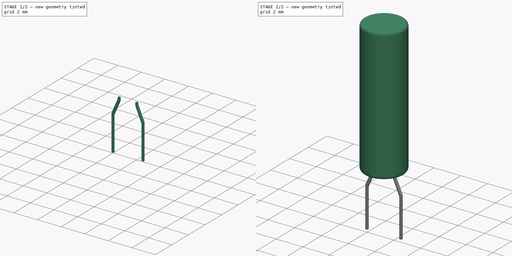
[diagram: build sequence overview — one tinted view per stage of 2, left to right]
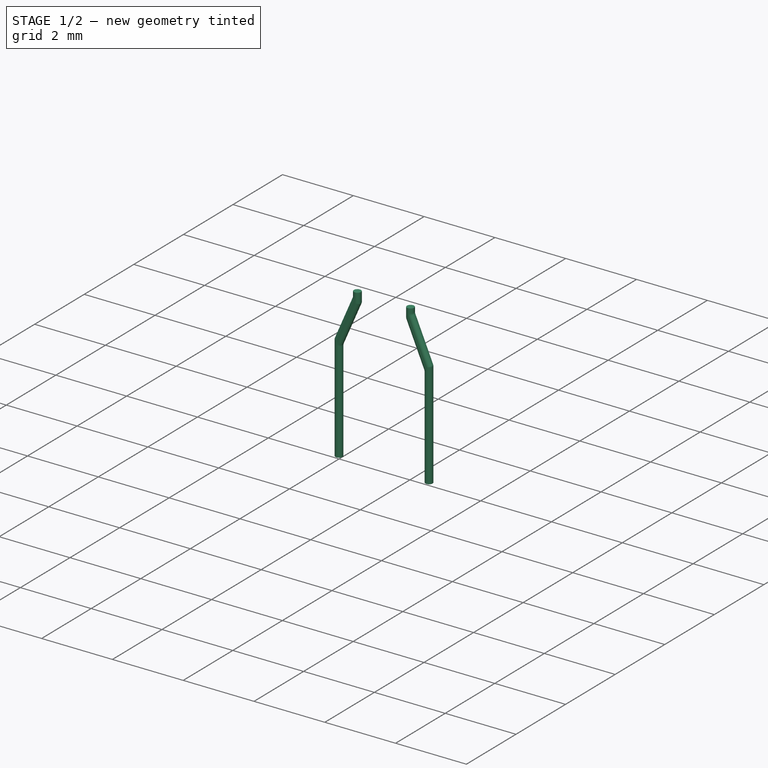
[diagram: stage 1 of 2 — iso view after this stage's code; geometry added in this stage tinted green]
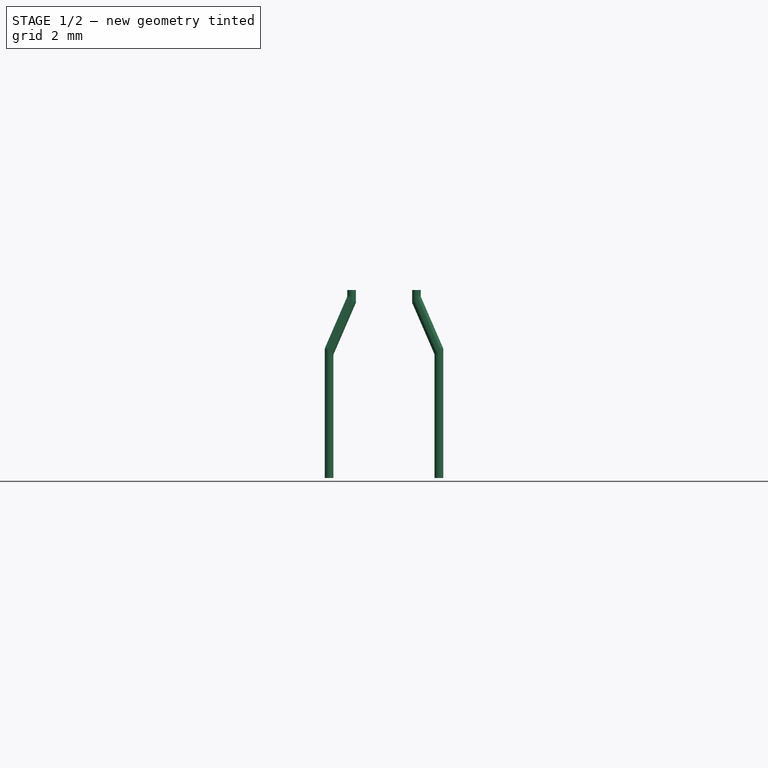
[diagram: stage 1 of 2 — front view after this stage's code; geometry added in this stage tinted green]
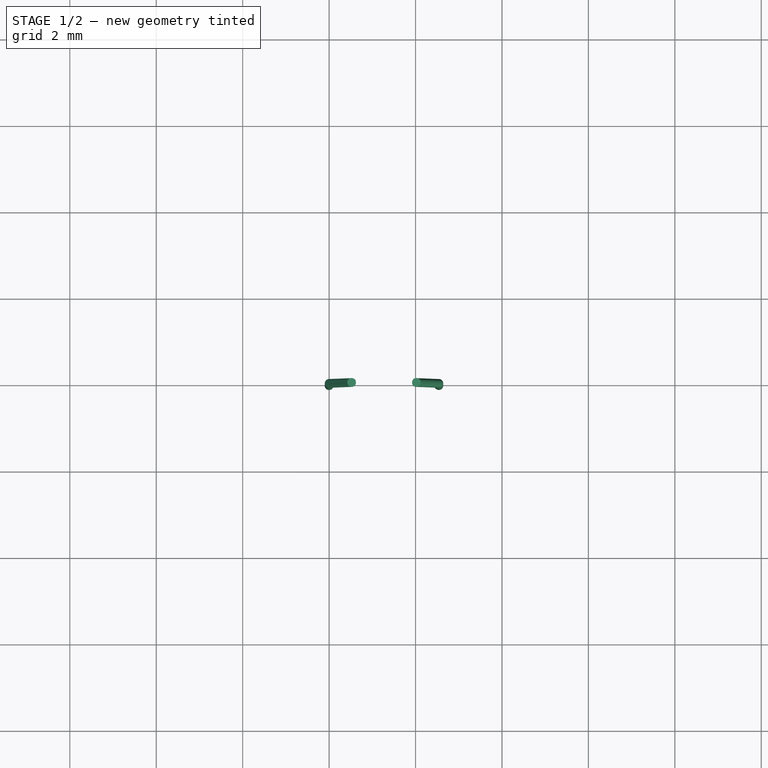
[diagram: stage 1 of 2 — top view after this stage's code; geometry added in this stage tinted green]
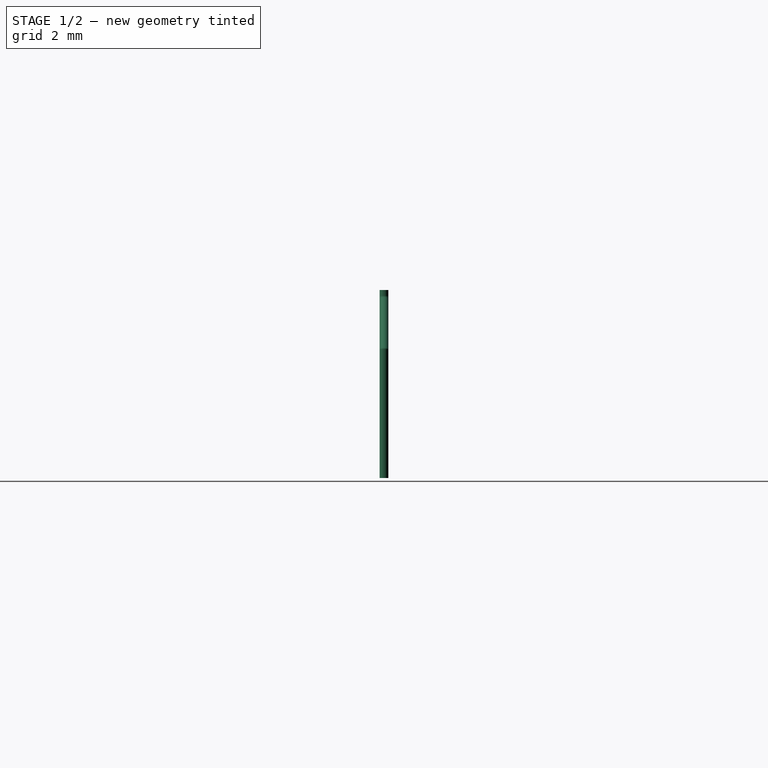
[diagram: stage 1 of 2 — right view after this stage's code; geometry added in this stage tinted green]
FCSTD DOCUMENT  (FreeCAD 0.16R6703 (Git))
Label: crystals_round_master
License: All rights reserved
LicenseURL: http://en.wikipedia.org/wiki/All_rights_reserved
objects: Sketcher::SketchObject×2, Spreadsheet::Sheet×1, PartDesign::Revolution×1, PartDesign::Pad×1, PartDesign::Fillet×1
note: 7 computed .brp shape members not serialized (recipe doc carries the construction recipe); baked Part::Feature solids carry a one-line shape summary decoded from their .brp

FEATURE [Sketcher::SketchObject] Sketch
  Placement = pos=(0,0,0) rot=(1,0,0;1.5708rad)
  expr: Constraints[36] = Spreadsheet.rm2
  expr: Constraints[47] = Spreadsheet.rm2
  expr: Constraints[6] = Spreadsheet.wire
  expr: Constraints[20] = Spreadsheet.wire / sqrt(2)
  expr: Constraints[11] = (Spreadsheet.rm - Spreadsheet.rm2) / 2 - Spreadsheet.wire / 2
  expr: Constraints[10] = -Spreadsheet.wire / 2
  expr: Constraints[19] = Spreadsheet.wire / sqrt(2)
  expr: Constraints[22] = Spreadsheet.offset / 10
  expr: Constraints[23] = Spreadsheet.offset
  expr: Constraints[45] = Spreadsheet.rm
  expr: Constraints[9] = Spreadsheet.offset / 10
  sketch-geometry (16):
    g0: LineSegment StartX=0.1 StartY=-2.85 StartZ=0 EndX=0.1 EndY=0.00857864 EndZ=0
    g1: LineSegment StartX=0.42 StartY=1.5 StartZ=0 EndX=0.62 EndY=1.5 EndZ=0
    g2: LineSegment StartX=-0.1 StartY=0.15 StartZ=0 EndX=-0.1 EndY=-2.85 EndZ=0
    g3: LineSegment StartX=-0.1 StartY=-2.85 StartZ=0 EndX=0.1 EndY=-2.85 EndZ=0
    g4: LineSegment StartX=0.1 StartY=0.00857864 StartZ=0 EndX=0.62 EndY=1.20858 EndZ=0
    g5: LineSegment StartX=0.62 StartY=1.20858 StartZ=0 EndX=0.62 EndY=1.5 EndZ=0
    g6: LineSegment StartX=0.42 StartY=1.5 StartZ=0 EndX=0.42 EndY=1.35 EndZ=0
    g7: LineSegment StartX=0.42 StartY=1.35 StartZ=0 EndX=-0.1 EndY=0.15 EndZ=0
    g8: LineSegment StartX=1.92 StartY=1.5 StartZ=0 EndX=2.12 EndY=1.5 EndZ=0
    g9: LineSegment StartX=1.92 StartY=1.5 StartZ=0 EndX=1.92 EndY=1.20858 EndZ=0
    g10: LineSegment StartX=1.92 StartY=1.20858 StartZ=0 EndX=2.44 EndY=0.00857864 EndZ=0
    g11: LineSegment StartX=2.44 StartY=0.00857864 StartZ=0 EndX=2.44 EndY=-2.85 EndZ=0
    g12: LineSegment StartX=2.44 StartY=-2.85 StartZ=0 EndX=2.64 EndY=-2.85 EndZ=0
    g13: LineSegment StartX=2.64 StartY=-2.85 StartZ=0 EndX=2.64 EndY=0.15 EndZ=0
    g14: LineSegment StartX=2.64 StartY=0.15 StartZ=0 EndX=2.12 EndY=1.35 EndZ=0
    g15: LineSegment StartX=2.12 StartY=1.35 StartZ=0 EndX=2.12 EndY=1.5 EndZ=0
  constraints (48):
    c: Vertical(g0)
    c: Vertical(g2)
    c: Coincident(g3,g2)
    c: Coincident(g3,g0)
    c: Horizontal(g3)
    c: Horizontal(g1)
    c: DistanceX(g1,g1) = 0.2
    c: Equal(g1,g3)
    c: DistanceY(g0,g2) = 3
    c: DistanceY(g-1,g2) = 0.15
    c: DistanceX(g0,g-1) = -0.1
    c: DistanceX(g-1,g1) = 0.42
    c: Coincident(g4,g0)
    c: Coincident(g5,g4)
    c: Vertical(g5)
    c: Coincident(g1,g5)
    c: Coincident(g6,g1)
    c: Vertical(g6)
    c: Coincident(g7,g2)
    c: DistanceY(g0,g2) = 0.141421
    c: DistanceY(g4,g6) = 0.141421
    c: Coincident(g7,g6)
    c: DistanceY(g6,g1) = 0.15
    c: DistanceY(g-1,g1) = 1.5
    c: Horizontal(g8)
    c: Coincident(g9,g8)
    c: Vertical(g9)
    c: Coincident(g10,g9)
    c: Vertical(g11)
    c: Horizontal(g12)
    c: Coincident(g13,g12)
    c: Vertical(g13)
    c: Coincident(g14,g13)
    c: Coincident(g15,g14)
    c: Coincident(g15,g8)
    c: Vertical(g15)
    c: DistanceX(g1,g8) = 1.5
    c: Equal(g12,g3)
    c: Coincident(g11,g12)
    c: Equal(g13,g2)
    c: Equal(g11,g0)
    c: Coincident(g10,g11)
    c: Equal(g9,g5)
    c: Equal(g15,g6)
    c: DistanceY(g1,g8) = 0
    c: DistanceX(g2,g10) = 2.54
    c: DistanceY(g0,g11) = 0
    c: DistanceX(g1,g8) = 1.5
FEATURE [PartDesign::Pad] Pad
  Length = 0.2
  Length2 = 100
  Midplane = true
  Placement = pos=(0,0,0) rot=(1,0,0;1.5708rad)
  Sketch = -> Sketch
  Type = 0
  expr: Length = Spreadsheet.wire
FEATURE [PartDesign::Fillet] Fillet
  Base = -> Pad [Edge40,Edge39,Edge43,Edge42,Edge46,Edge45,Edge28,Edge31,Edge34,Edge19,Edge22,Edge24,Edge7,Edge10,Edge13,Edge12,Edge9,Edge6,Edge8,Edge5,Edge23,Edge21,Edge18,Edge30,Edge27,Edge33,Edge38,Edge29,Edge26,Edge20,Edge17]
  Placement = pos=(0,0,0) rot=(1,0,0;1.5708rad)
  Radius = 0.096
  expr: Radius = Spreadsheet.wire * 0.48
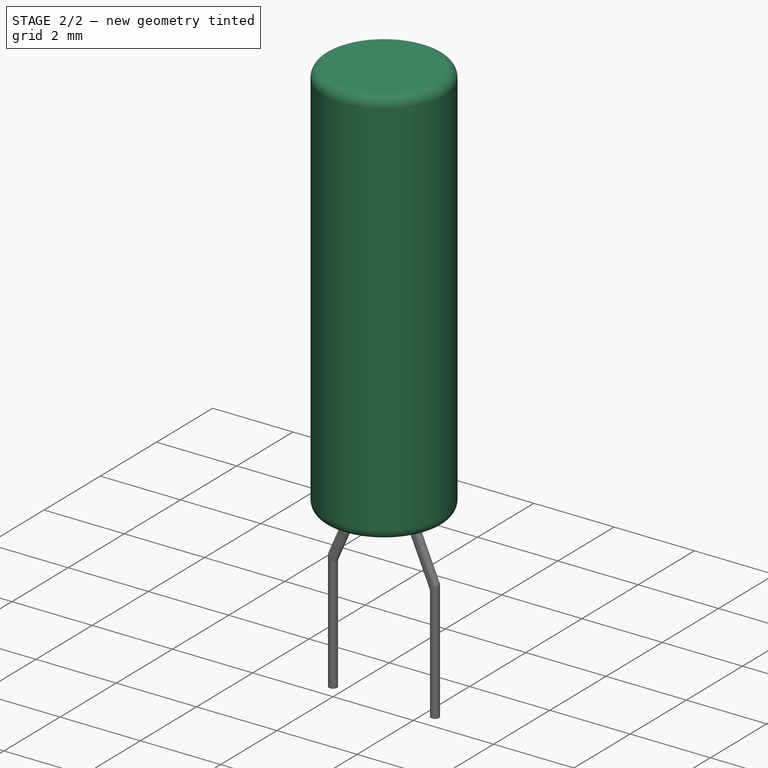
[diagram: stage 2 of 2 — iso view after this stage's code; geometry added in this stage tinted green]
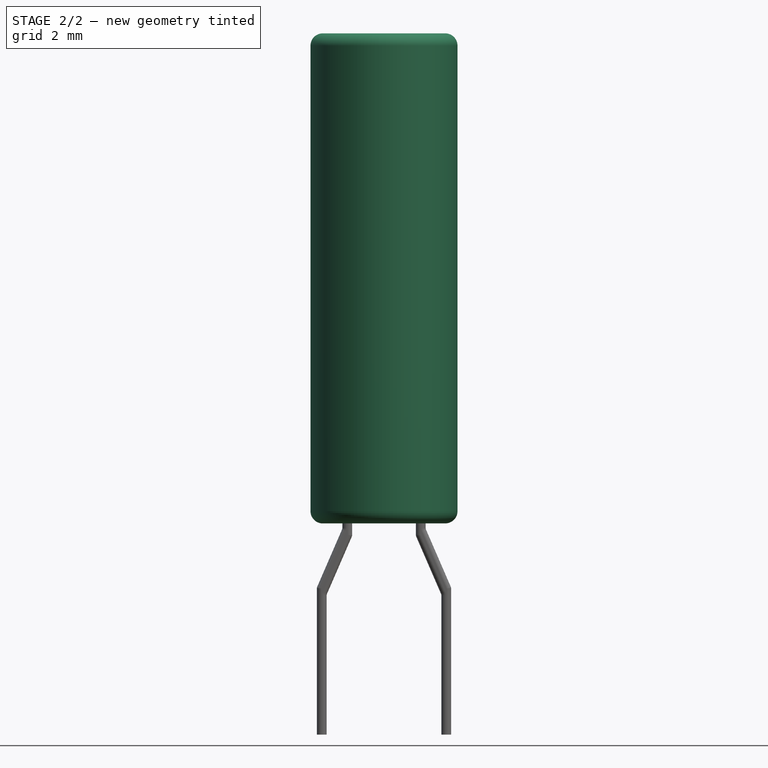
[diagram: stage 2 of 2 — front view after this stage's code; geometry added in this stage tinted green]
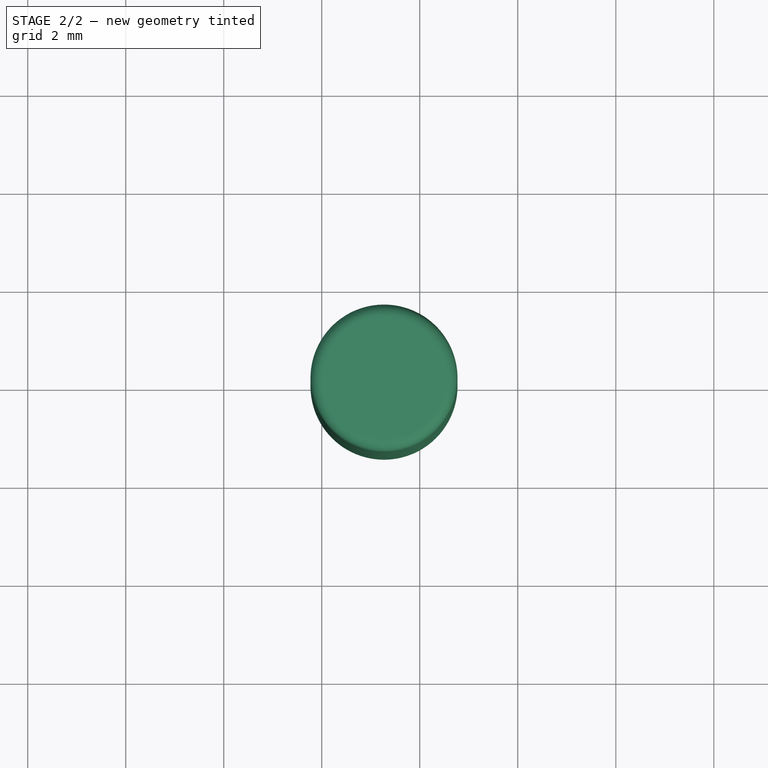
[diagram: stage 2 of 2 — top view after this stage's code; geometry added in this stage tinted green]
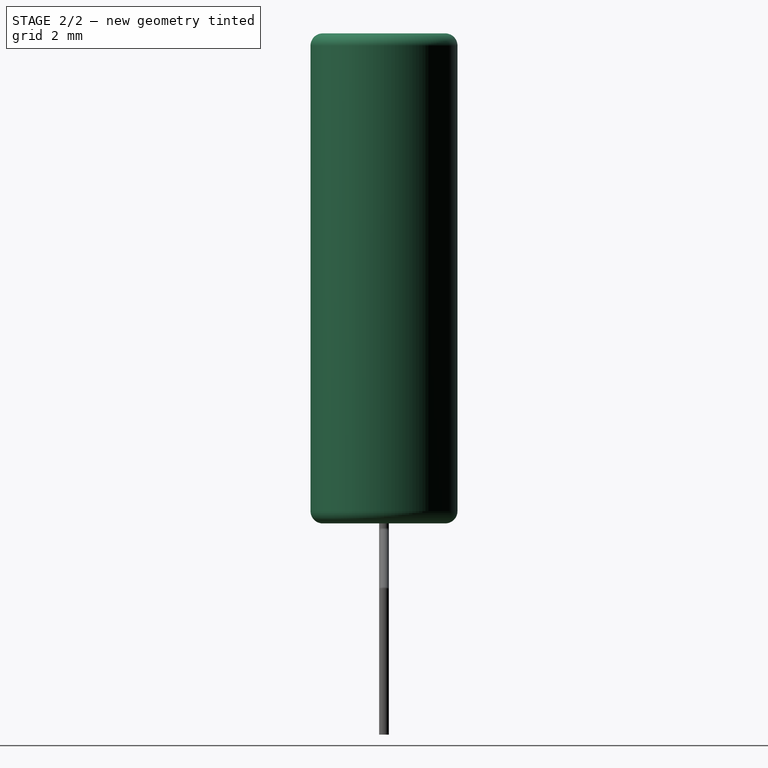
[diagram: stage 2 of 2 — right view after this stage's code; geometry added in this stage tinted green]
FEATURE [Spreadsheet::Sheet] Spreadsheet
  cells = A1=diameter; B1(diameter)=3; A2=length; B2(length)=10; A3=rm; B3(rm)=2.54; C3(rm2)=1.5; A4=offset; B4(offset)=1.5; A5=wire; B5(wire)=0.2
FEATURE [Sketcher::SketchObject] Sketch002
  Placement = pos=(0,0,0) rot=(1,0,0;1.5708rad)
  expr: Constraints[17] = Spreadsheet.diameter / 2
  expr: Constraints[7] = Spreadsheet.offset - Spreadsheet.wire / 5
  expr: Constraints[6] = Spreadsheet.length
  expr: Constraints[8] = (Spreadsheet.rm - Spreadsheet.rm2) / 2 + Spreadsheet.rm2 / 2
  sketch-geometry (7):
    g0: LineSegment StartX=0.02 StartY=11.46 StartZ=0 EndX=1.27 EndY=11.46 EndZ=0
    g1: LineSegment [constr] StartX=1.27 StartY=11.46 StartZ=0 EndX=1.27 EndY=1.46 EndZ=0
    g2: LineSegment StartX=1.27 StartY=1.46 StartZ=0 EndX=0.02 EndY=1.46 EndZ=0
    g3: LineSegment StartX=-0.23 StartY=1.71 StartZ=0 EndX=-0.23 EndY=11.21 EndZ=0
    g4: ArcOfCircle CenterX=0.02 CenterY=1.71 CenterZ=0 NormalX=0 NormalY=0 NormalZ=1 Radius=0.25 StartAngle=3.14159 EndAngle=4.71239
    g5: ArcOfCircle CenterX=0.02 CenterY=11.21 CenterZ=0 NormalX=0 NormalY=0 NormalZ=1 Radius=0.25 StartAngle=1.5708 EndAngle=3.14159
    g6: LineSegment StartX=1.27 StartY=1.46 StartZ=0 EndX=1.27 EndY=11.46 EndZ=0
  constraints (18):
    c: Coincident(g0,g1)
    c: Coincident(g1,g2)
    c: Horizontal(g0)
    c: Horizontal(g2)
    c: Vertical(g1)
    c: Vertical(g3)
    c: DistanceY(g1,g1) = 10
    c: DistanceY(g-1,g1) = 1.46
    c: DistanceX(g-1,g1) = 1.27
    c: Tangent(g3,g4) = 1.5708
    c: Tangent(g2,g4) = 1.5708
    c: Tangent(g3,g5) = 1.5708
    c: Tangent(g0,g5) = 1.5708
    c: Equal(g5,g4)
    c: Radius(g4) = 0.25
    c: Coincident(g6,g1)
    c: Coincident(g6,g0)
    c: DistanceX(g3,g1) = 1.5
FEATURE [PartDesign::Revolution] Revolution
  Angle = 360
  Axis = (0,0,-10)
  Base = (1.27,0,11.46)
  Placement = pos=(0,0,0) rot=(1,0,0;1.5708rad)
  ReferenceAxis = -> Sketch002 [Axis0]
  Reversed = true
  Sketch = -> Sketch002
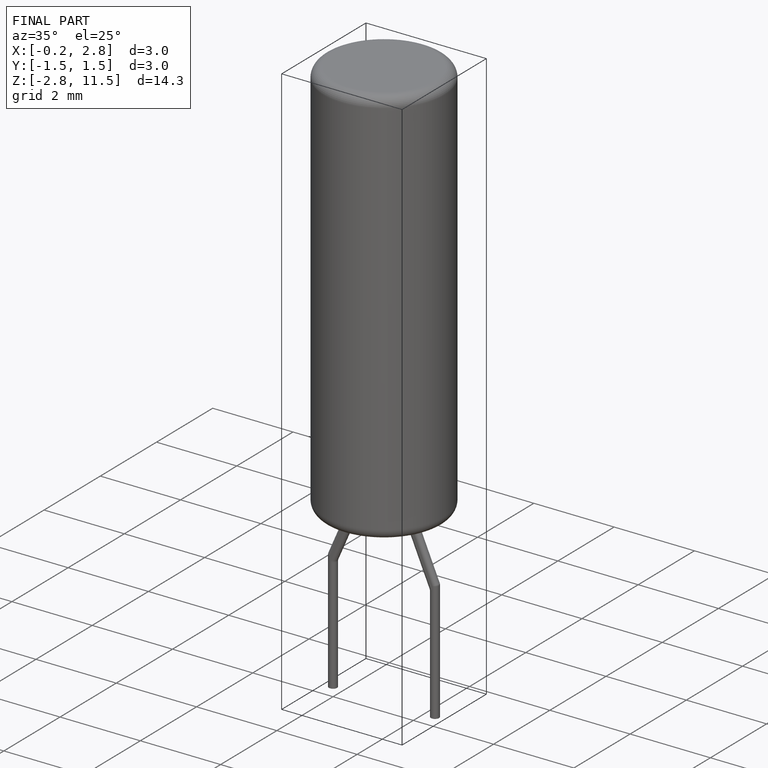
[diagram: finished part — iso view with bounding-box wireframe]
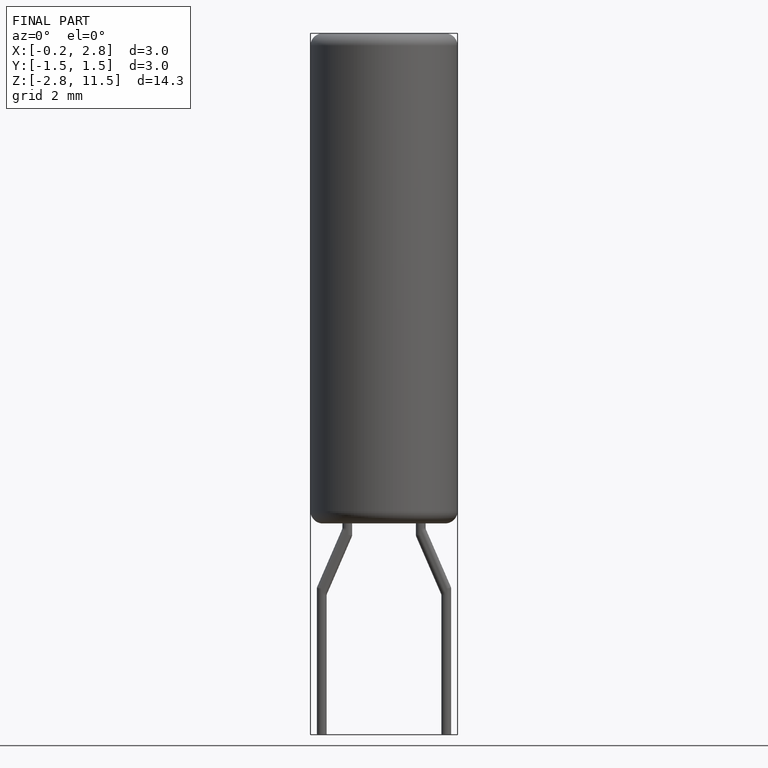
[diagram: finished part — front view with bounding-box wireframe]
